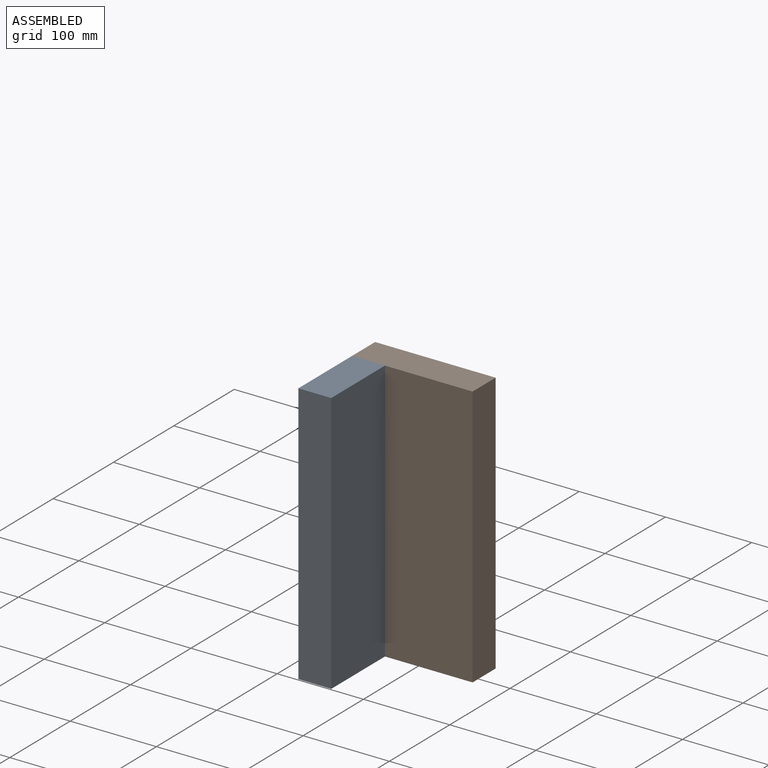
[diagram: assembled view]
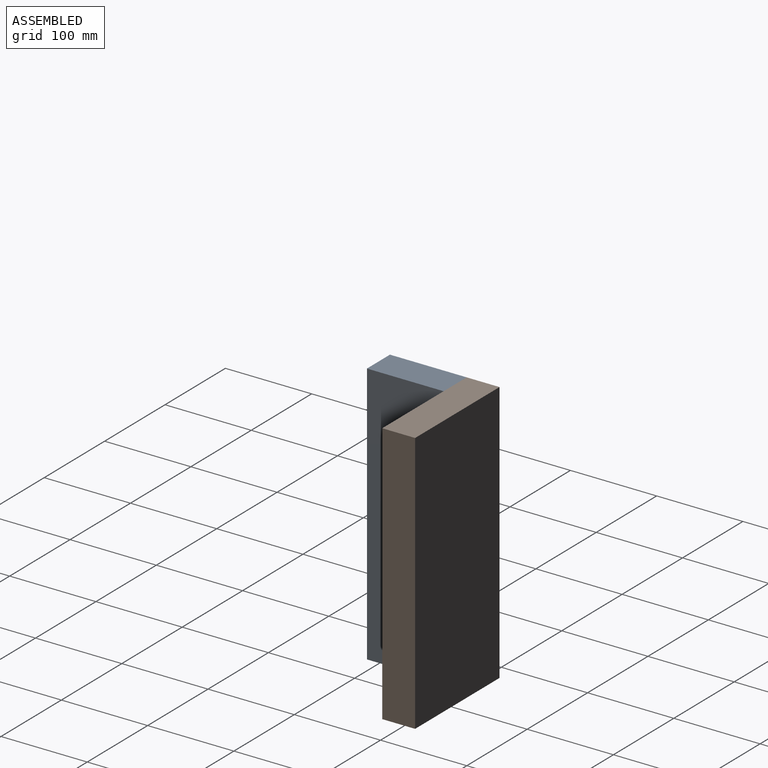
[diagram: assembled view, second angle]
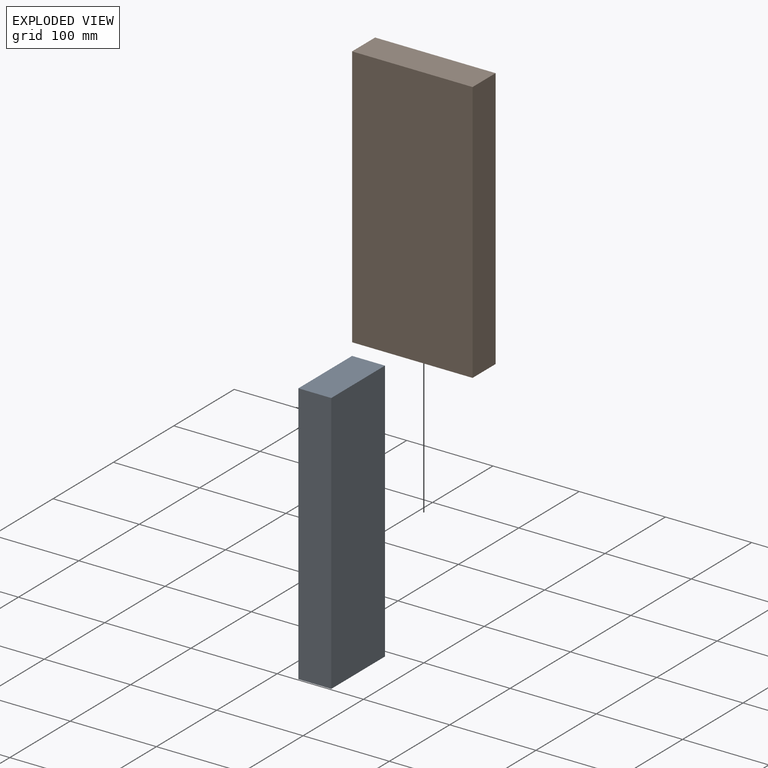
[diagram: exploded view]
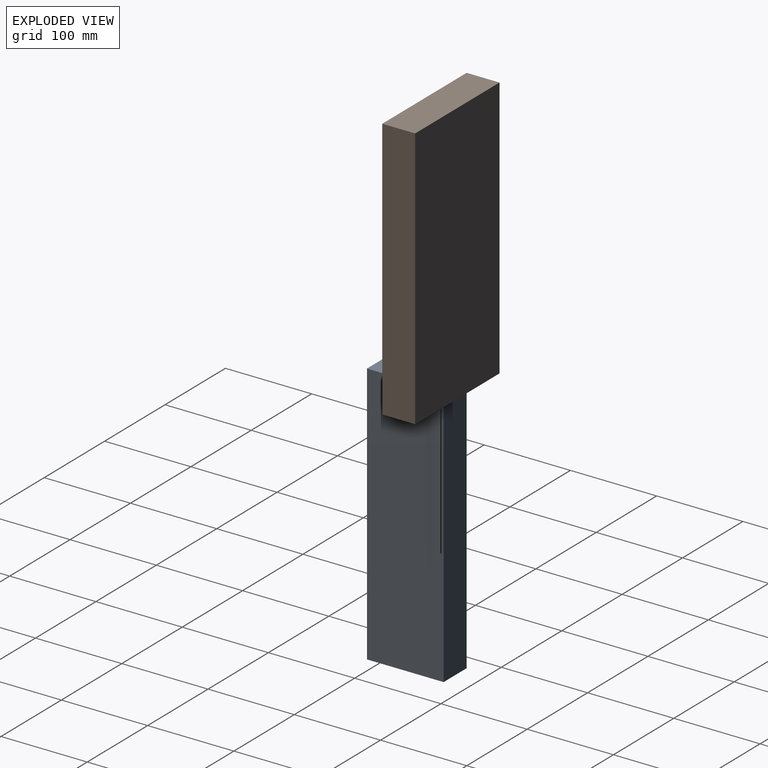
[diagram: exploded view, second angle]
ASSEMBLY  parts=2 mates=3
PART A: 6 faces, bbox 88.9x304.8x38.1 mm
  f0: plane 304.8x38.1mm, normal (1,0,0), area 11612.9mm2, adj f1,f3,f4,f5
  f1: plane 304.8x88.9mm, normal (0,0,1), area 27096.7mm2, adj f0,f2,f4,f5
  f2: plane 304.8x38.1mm, normal (-1,0,0), area 11612.9mm2, adj f1,f3,f4,f5
  f3: plane 304.8x88.9mm, normal (0,0,-1), area 27096.7mm2, adj f0,f2,f4,f5
  f4: plane 88.9x38.1mm, normal (0,-1,0), area 3387.1mm2, adj f0,f1,f2,f3
  f5: plane 88.9x38.1mm, normal (0,1,0), area 3387.1mm2, adj f0,f1,f2,f3
PART B: 6 faces, bbox 139.7x304.8x38.1 mm
  f0: plane 304.8x38.1mm, normal (1,0,0), area 11612.9mm2, adj f1,f3,f4,f5
  f1: plane 304.8x139.7mm, normal (0,0,1), area 42580.6mm2, adj f0,f2,f4,f5
  f2: plane 304.8x38.1mm, normal (-1,0,0), area 11612.9mm2, adj f1,f3,f4,f5
  f3: plane 304.8x139.7mm, normal (0,0,-1), area 42580.6mm2, adj f0,f2,f4,f5
  f4: plane 139.7x38.1mm, normal (0,-1,0), area 5322.6mm2, adj f0,f1,f2,f3
  f5: plane 139.7x38.1mm, normal (0,1,0), area 5322.6mm2, adj f0,f1,f2,f3
PLACE A rot(axis=(0.58,0.58,0.58),120deg) t=(-50.8,-63.5,0)mm
PLACE B rot(axis=(-1,0,0),90deg) t=(0,0,-304.8)mm
MATE planar A.f5 <-> B.f4  axis (0,0,1) through (-50.8,-63.5,0)mm
MATE planar A.f3 <-> B.f2  axis (-1,0,0) through (-69.85,-63.5,-152.4)mm
MATE planar A.f0 <-> B.f3  axis (0,1,0) through (-69.85,-19.05,-152.4)mm
